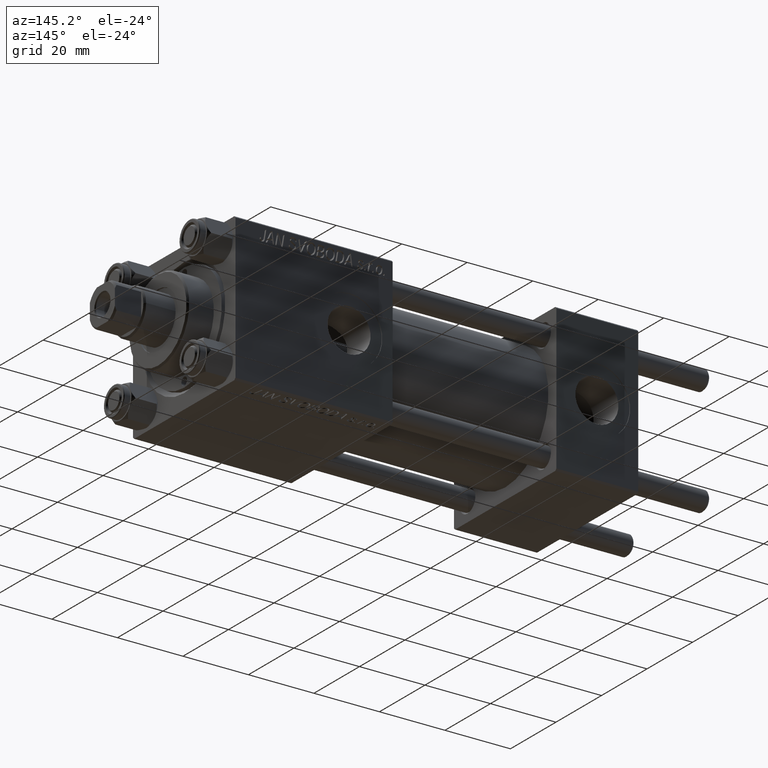
[diagram: clean part render]
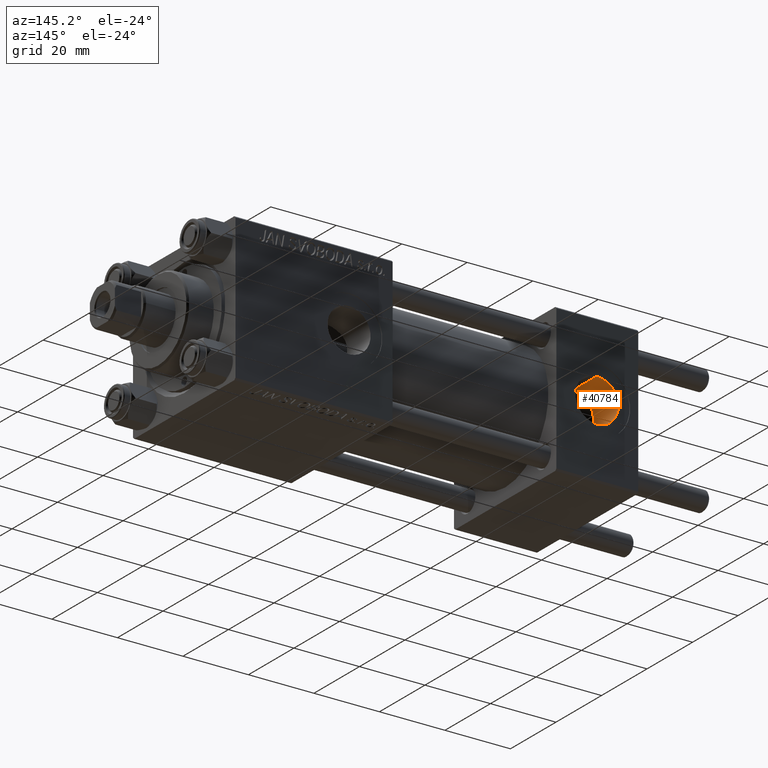
[diagram: same view with one face highlighted and labeled with its STEP entity id]
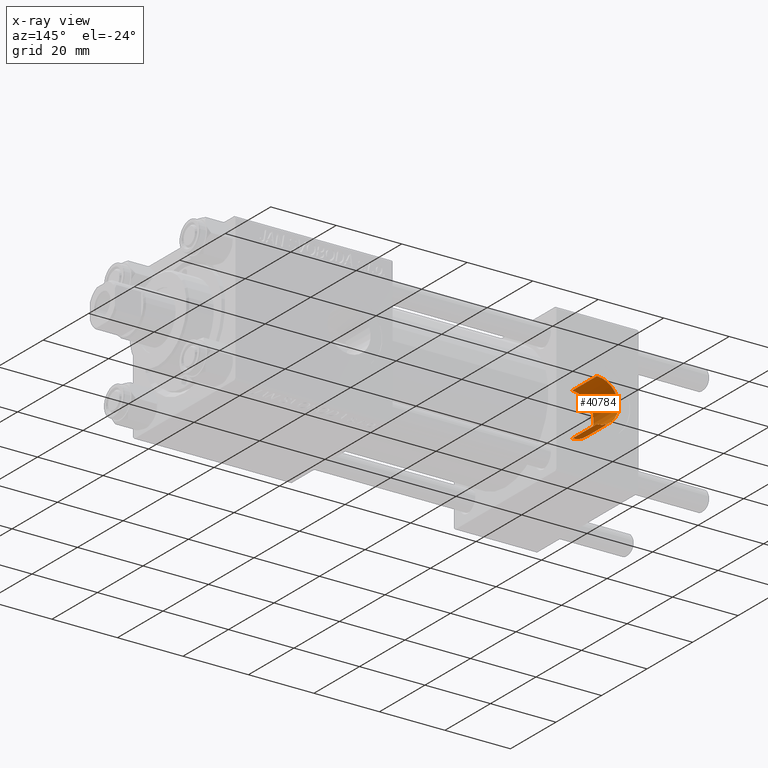
[diagram: x-ray of the same camera — body ghosted, the highlighted face saturated]
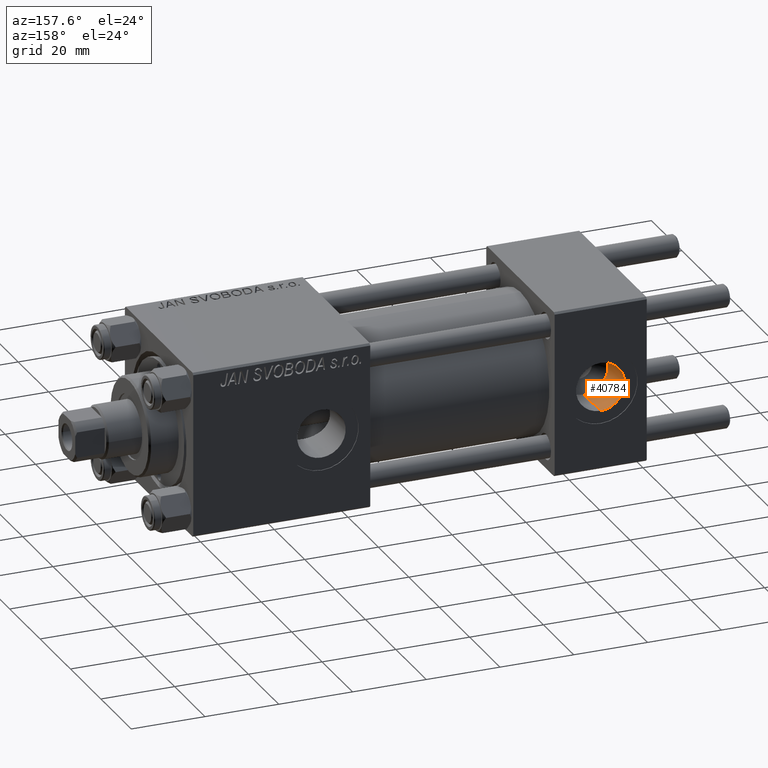
[diagram: same view with one face highlighted and labeled with its STEP entity id]
A machine part, auxiliary view. The second image highlights one B-rep face of the part: STEP entity #40784.
The next image is the same camera in x-ray: the body ghosted, the highlighted face saturated — about 0% of this face is hidden behind the body in this view.
A second angle (auxiliary view) of the same face is appended — the face is thin or edge-on in the first view.
In plain terms, the highlighted cylindrical surface (edge-blend (fillet) strip) has radius 6.58 mm, axis along (0, 1, 0).
Its self-contained STEP definition (entity closure, byte-faithful):
#508 = VERTEX_POINT ( 'NONE', #43371 ) ;
#1679 = CARTESIAN_POINT ( 'NONE',  ( 12.50000000000000000, 11.50000000000000000, 6.579999999999998295 ) ) ;
#2394 = LINE ( 'NONE', #9956, #11222 ) ;
#3643 = ORIENTED_EDGE ( 'NONE', *, *, #33229, .T. ) ;
#4712 = VERTEX_POINT ( 'NONE', #6603 ) ;
#6603 = CARTESIAN_POINT ( 'NONE',  ( 12.50000000000000000, 11.43999999999999773, 6.579999999999998295 ) ) ;
#9458 = DIRECTION ( 'NONE',  ( -0.000000000000000000, 1.000000000000000000, -0.000000000000000000 ) ) ;
#9956 = CARTESIAN_POINT ( 'NONE',  ( 12.50000000000000000, 11.50000000000000000, -6.579999999999998295 ) ) ;
#11222 = VECTOR ( 'NONE', #9458, 1000.000000000000000 ) ;
#13190 = EDGE_CURVE ( 'NONE', #4712, #34235, #35647, .T. ) ;
#13721 = AXIS2_PLACEMENT_3D ( 'NONE', #46575, #45822, #35197 ) ;
#16625 = DIRECTION ( 'NONE',  ( -0.000000000000000000, 1.000000000000000000, -0.000000000000000000 ) ) ;
#17618 = CYLINDRICAL_SURFACE ( 'NONE', #35733, 6.579999999999998295 ) ;
#18681 = ORIENTED_EDGE ( 'NONE', *, *, #35301, .T. ) ;
#19394 = CIRCLE ( 'NONE', #13721, 6.579999999999998295 ) ;
#20729 = CARTESIAN_POINT ( 'NONE',  ( 12.50000000000000000, 22.30000000000000071, 6.579999999999998295 ) ) ;
#21298 = VERTEX_POINT ( 'NONE', #49673 ) ;
#24861 = AXIS2_PLACEMENT_3D ( 'NONE', #28068, #39694, #40188 ) ;
#28068 = CARTESIAN_POINT ( 'NONE',  ( 12.50000000000000000, 22.30000000000000071, 0.000000000000000000 ) ) ;
#28515 = DIRECTION ( 'NONE',  ( 0.000000000000000000, 0.000000000000000000, 1.000000000000000000 ) ) ;
#28652 = EDGE_CURVE ( 'NONE', #21298, #34235, #39383, .T. ) ;
#28681 = EDGE_LOOP ( 'NONE', ( #18681, #3643, #34794, #42864 ) ) ;
#33229 = EDGE_CURVE ( 'NONE', #508, #21298, #2394, .T. ) ;
#34235 = VERTEX_POINT ( 'NONE', #20729 ) ;
#34794 = ORIENTED_EDGE ( 'NONE', *, *, #28652, .T. ) ;
#35197 = DIRECTION ( 'NONE',  ( 0.000000000000000000, 0.000000000000000000, 1.000000000000000000 ) ) ;
#35301 = EDGE_CURVE ( 'NONE', #4712, #508, #19394, .T. ) ;
#35647 = LINE ( 'NONE', #1679, #43827 ) ;
#35733 = AXIS2_PLACEMENT_3D ( 'NONE', #37100, #16625, #28515 ) ;
#37100 = CARTESIAN_POINT ( 'NONE',  ( 12.50000000000000000, 11.50000000000000000, 0.000000000000000000 ) ) ;
#39383 = CIRCLE ( 'NONE', #24861, 6.579999999999998295 ) ;
#39694 = DIRECTION ( 'NONE',  ( 0.000000000000000000, 1.000000000000000000, 0.000000000000000000 ) ) ;
#40188 = DIRECTION ( 'NONE',  ( 0.000000000000000000, 0.000000000000000000, 1.000000000000000000 ) ) ;
#40784 = ADVANCED_FACE ( 'NONE', ( #48001 ), #17618, .F. ) ;
#42864 = ORIENTED_EDGE ( 'NONE', *, *, #13190, .F. ) ;
#43371 = CARTESIAN_POINT ( 'NONE',  ( 12.50000000000000000, 11.43999999999999773, -6.579999999999998295 ) ) ;
#43827 = VECTOR ( 'NONE', #44655, 1000.000000000000000 ) ;
#44655 = DIRECTION ( 'NONE',  ( -0.000000000000000000, 1.000000000000000000, -0.000000000000000000 ) ) ;
#45822 = DIRECTION ( 'NONE',  ( -0.000000000000000000, -1.000000000000000000, -0.000000000000000000 ) ) ;
#46575 = CARTESIAN_POINT ( 'NONE',  ( 12.50000000000000000, 11.43999999999999773, 0.000000000000000000 ) ) ;
#48001 = FACE_OUTER_BOUND ( 'NONE', #28681, .T. ) ;
#49673 = CARTESIAN_POINT ( 'NONE',  ( 12.50000000000000000, 22.30000000000000071, -6.579999999999998295 ) ) ;